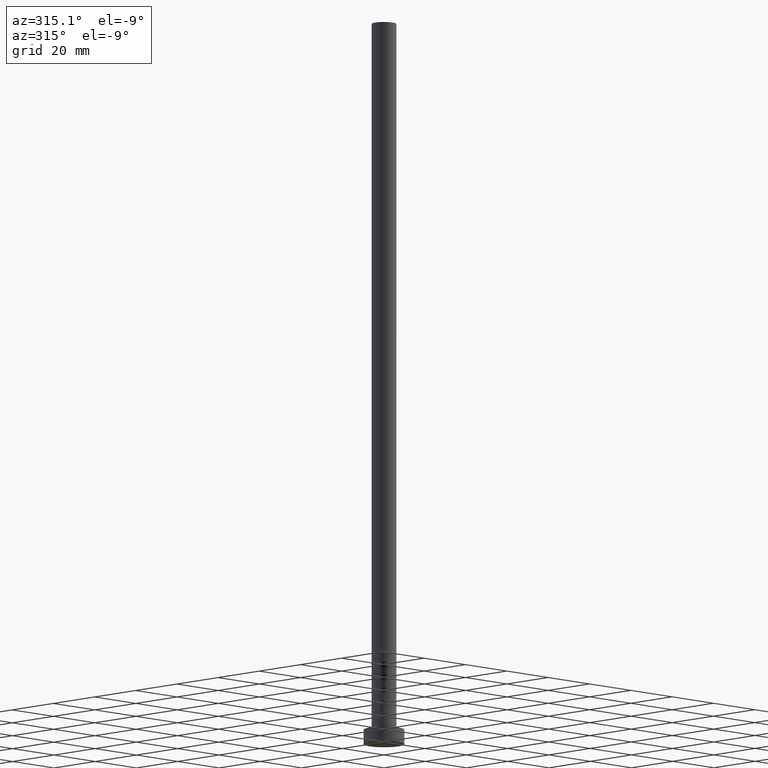
[diagram: clean part render]
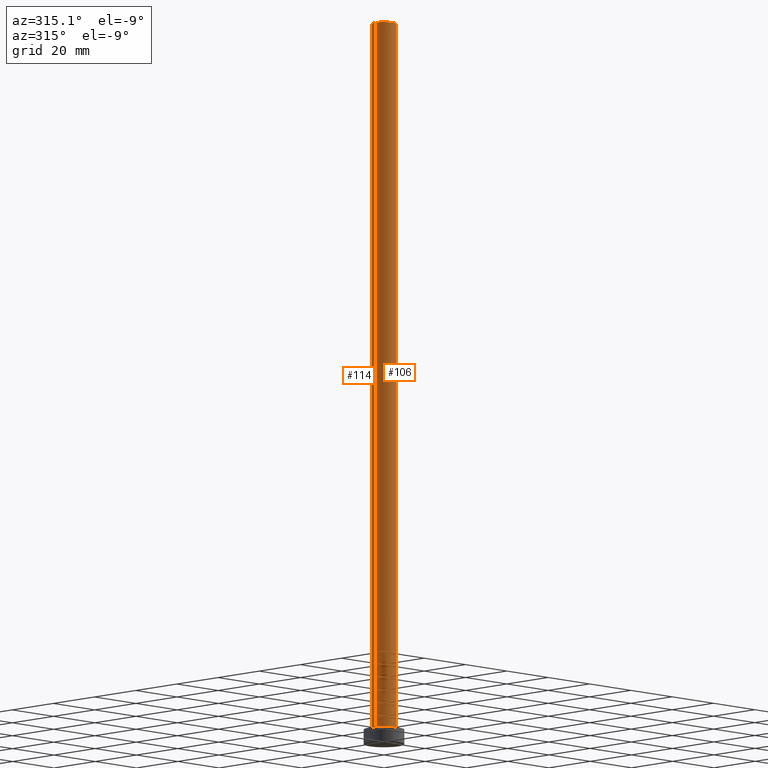
[diagram: same view with one multi-face feature highlighted, each face labeled with its STEP entity id]
A machine part, auxiliary view. The highlighted faces form ONE feature: a constant-radius fillet chain: 2 tangent blend faces with common blend radius 4.25 mm. The faces share edges in the B-rep.
Their STEP definitions:
[1] entity #106 (Cylinder):
#6 = EDGE_CURVE ( 'NONE', #125, #123, #60, .T. ) ;
#7 = CARTESIAN_POINT ( 'NONE',  ( 0.000000000000000000, 0.000000000000000000, 250.0000000000000000 ) ) ;
#18 = EDGE_LOOP ( 'NONE', ( #102, #242, #220, #201 ) ) ;
#21 = EDGE_CURVE ( 'NONE', #183, #22, #124, .T. ) ;
#22 = VERTEX_POINT ( 'NONE', #24 ) ;
#24 = CARTESIAN_POINT ( 'NONE',  ( -4.250000000000000000, 0.000000000000000000, 5.000000000000000000 ) ) ;
#41 = DIRECTION ( 'NONE',  ( -0.000000000000000000, -0.000000000000000000, -1.000000000000000000 ) ) ;
#59 = AXIS2_PLACEMENT_3D ( 'NONE', #155, #209, #127 ) ;
#60 = LINE ( 'NONE', #147, #78 ) ;
#62 = CARTESIAN_POINT ( 'NONE',  ( 4.250000000000000000, 5.204748896376250699E-16, 5.000000000000000000 ) ) ;
#70 = EDGE_CURVE ( 'NONE', #22, #123, #157, .T. ) ;
#77 = DIRECTION ( 'NONE',  ( 0.000000000000000000, 0.000000000000000000, 1.000000000000000000 ) ) ;
#78 = VECTOR ( 'NONE', #222, 1000.000000000000000 ) ;
#101 = CIRCLE ( 'NONE', #59, 4.250000000000000000 ) ;
#102 = ORIENTED_EDGE ( 'NONE', *, *, #6, .F. ) ;
#106 = ADVANCED_FACE ( 'NONE', ( #187 ), #228, .T. ) ;
#108 = AXIS2_PLACEMENT_3D ( 'NONE', #252, #77, #236 ) ;
#123 = VERTEX_POINT ( 'NONE', #62 ) ;
#124 = LINE ( 'NONE', #223, #129 ) ;
#125 = VERTEX_POINT ( 'NONE', #149 ) ;
#127 = DIRECTION ( 'NONE',  ( 1.000000000000000000, 0.000000000000000000, 0.000000000000000000 ) ) ;
#129 = VECTOR ( 'NONE', #41, 1000.000000000000000 ) ;
#144 = AXIS2_PLACEMENT_3D ( 'NONE', #7, #167, #244 ) ;
#147 = CARTESIAN_POINT ( 'NONE',  ( 4.250000000000000000, 5.204748896376250699E-16, 250.0000000000000000 ) ) ;
#149 = CARTESIAN_POINT ( 'NONE',  ( 4.250000000000000000, 5.204748896376250699E-16, 250.0000000000000000 ) ) ;
#153 = CARTESIAN_POINT ( 'NONE',  ( -4.250000000000000000, 0.000000000000000000, 250.0000000000000000 ) ) ;
#155 = CARTESIAN_POINT ( 'NONE',  ( 0.000000000000000000, 0.000000000000000000, 250.0000000000000000 ) ) ;
#157 = CIRCLE ( 'NONE', #108, 4.250000000000000000 ) ;
#167 = DIRECTION ( 'NONE',  ( -0.000000000000000000, -0.000000000000000000, -1.000000000000000000 ) ) ;
#175 = EDGE_CURVE ( 'NONE', #183, #125, #101, .T. ) ;
#183 = VERTEX_POINT ( 'NONE', #153 ) ;
#187 = FACE_OUTER_BOUND ( 'NONE', #18, .T. ) ;
#201 = ORIENTED_EDGE ( 'NONE', *, *, #70, .T. ) ;
#209 = DIRECTION ( 'NONE',  ( 0.000000000000000000, 0.000000000000000000, 1.000000000000000000 ) ) ;
#220 = ORIENTED_EDGE ( 'NONE', *, *, #21, .T. ) ;
#222 = DIRECTION ( 'NONE',  ( -0.000000000000000000, -0.000000000000000000, -1.000000000000000000 ) ) ;
#223 = CARTESIAN_POINT ( 'NONE',  ( -4.250000000000000000, 0.000000000000000000, 250.0000000000000000 ) ) ;
#228 = CYLINDRICAL_SURFACE ( 'NONE', #144, 4.250000000000000000 ) ;
#236 = DIRECTION ( 'NONE',  ( 1.000000000000000000, 0.000000000000000000, 0.000000000000000000 ) ) ;
#242 = ORIENTED_EDGE ( 'NONE', *, *, #175, .F. ) ;
#244 = DIRECTION ( 'NONE',  ( -1.000000000000000000, 0.000000000000000000, 0.000000000000000000 ) ) ;
#252 = CARTESIAN_POINT ( 'NONE',  ( 0.000000000000000000, 0.000000000000000000, 5.000000000000000000 ) ) ;
[2] entity #114 (Cylinder):
#2 = AXIS2_PLACEMENT_3D ( 'NONE', #47, #226, #246 ) ;
#5 = DIRECTION ( 'NONE',  ( 0.000000000000000000, 0.000000000000000000, 1.000000000000000000 ) ) ;
#6 = EDGE_CURVE ( 'NONE', #125, #123, #60, .T. ) ;
#11 = CARTESIAN_POINT ( 'NONE',  ( 0.000000000000000000, 0.000000000000000000, 250.0000000000000000 ) ) ;
#21 = EDGE_CURVE ( 'NONE', #183, #22, #124, .T. ) ;
#22 = VERTEX_POINT ( 'NONE', #24 ) ;
#24 = CARTESIAN_POINT ( 'NONE',  ( -4.250000000000000000, 0.000000000000000000, 5.000000000000000000 ) ) ;
#25 = CARTESIAN_POINT ( 'NONE',  ( 0.000000000000000000, 0.000000000000000000, 250.0000000000000000 ) ) ;
#26 = CYLINDRICAL_SURFACE ( 'NONE', #117, 4.250000000000000000 ) ;
#41 = DIRECTION ( 'NONE',  ( -0.000000000000000000, -0.000000000000000000, -1.000000000000000000 ) ) ;
#47 = CARTESIAN_POINT ( 'NONE',  ( 0.000000000000000000, 0.000000000000000000, 5.000000000000000000 ) ) ;
#60 = LINE ( 'NONE', #147, #78 ) ;
#62 = CARTESIAN_POINT ( 'NONE',  ( 4.250000000000000000, 5.204748896376250699E-16, 5.000000000000000000 ) ) ;
#74 = AXIS2_PLACEMENT_3D ( 'NONE', #25, #5, #88 ) ;
#78 = VECTOR ( 'NONE', #222, 1000.000000000000000 ) ;
#87 = FACE_OUTER_BOUND ( 'NONE', #145, .T. ) ;
#88 = DIRECTION ( 'NONE',  ( 1.000000000000000000, 0.000000000000000000, 0.000000000000000000 ) ) ;
#93 = EDGE_CURVE ( 'NONE', #125, #183, #224, .T. ) ;
#109 = DIRECTION ( 'NONE',  ( -1.000000000000000000, 0.000000000000000000, 0.000000000000000000 ) ) ;
#114 = ADVANCED_FACE ( 'NONE', ( #87 ), #26, .T. ) ;
#117 = AXIS2_PLACEMENT_3D ( 'NONE', #11, #186, #109 ) ;
#120 = EDGE_CURVE ( 'NONE', #123, #22, #198, .T. ) ;
#123 = VERTEX_POINT ( 'NONE', #62 ) ;
#124 = LINE ( 'NONE', #223, #129 ) ;
#125 = VERTEX_POINT ( 'NONE', #149 ) ;
#129 = VECTOR ( 'NONE', #41, 1000.000000000000000 ) ;
#145 = EDGE_LOOP ( 'NONE', ( #165, #148, #205, #218 ) ) ;
#147 = CARTESIAN_POINT ( 'NONE',  ( 4.250000000000000000, 5.204748896376250699E-16, 250.0000000000000000 ) ) ;
#148 = ORIENTED_EDGE ( 'NONE', *, *, #6, .T. ) ;
#149 = CARTESIAN_POINT ( 'NONE',  ( 4.250000000000000000, 5.204748896376250699E-16, 250.0000000000000000 ) ) ;
#153 = CARTESIAN_POINT ( 'NONE',  ( -4.250000000000000000, 0.000000000000000000, 250.0000000000000000 ) ) ;
#165 = ORIENTED_EDGE ( 'NONE', *, *, #93, .F. ) ;
#183 = VERTEX_POINT ( 'NONE', #153 ) ;
#186 = DIRECTION ( 'NONE',  ( -0.000000000000000000, -0.000000000000000000, -1.000000000000000000 ) ) ;
#198 = CIRCLE ( 'NONE', #2, 4.250000000000000000 ) ;
#205 = ORIENTED_EDGE ( 'NONE', *, *, #120, .T. ) ;
#218 = ORIENTED_EDGE ( 'NONE', *, *, #21, .F. ) ;
#222 = DIRECTION ( 'NONE',  ( -0.000000000000000000, -0.000000000000000000, -1.000000000000000000 ) ) ;
#223 = CARTESIAN_POINT ( 'NONE',  ( -4.250000000000000000, 0.000000000000000000, 250.0000000000000000 ) ) ;
#224 = CIRCLE ( 'NONE', #74, 4.250000000000000000 ) ;
#226 = DIRECTION ( 'NONE',  ( 0.000000000000000000, 0.000000000000000000, 1.000000000000000000 ) ) ;
#246 = DIRECTION ( 'NONE',  ( 1.000000000000000000, 0.000000000000000000, 0.000000000000000000 ) ) ;